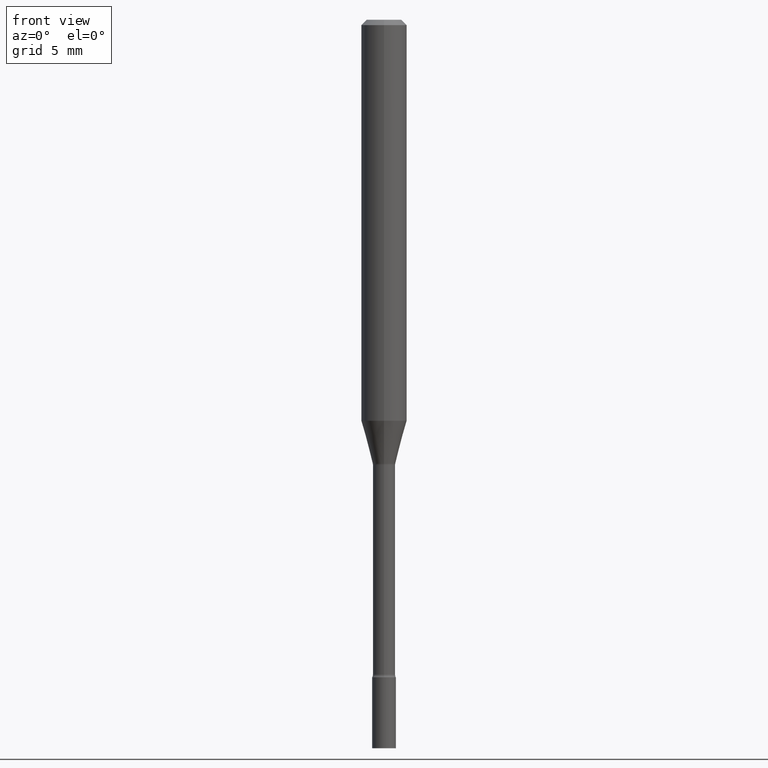
[diagram: clean part render]
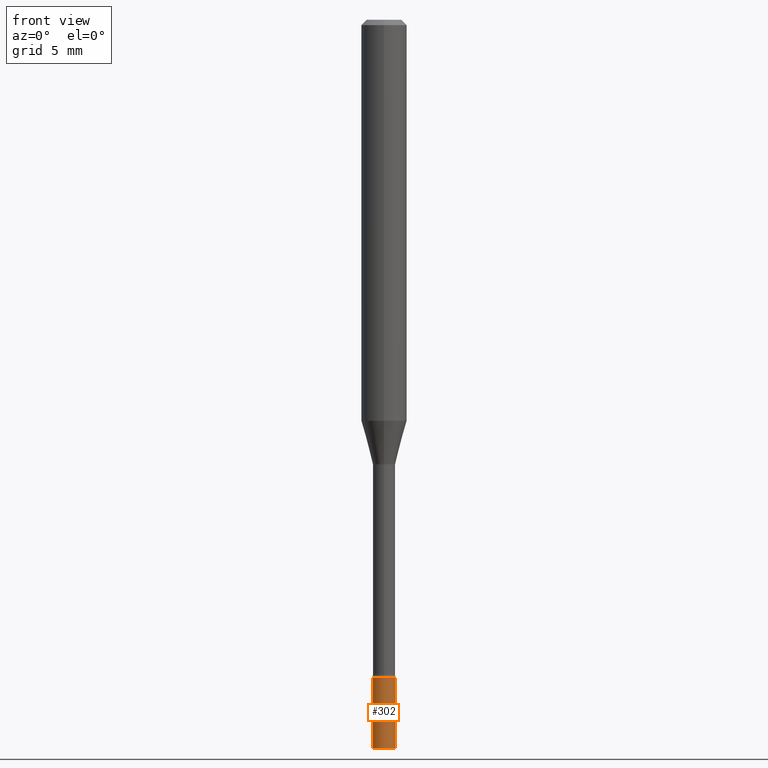
[diagram: same view with one face highlighted and labeled with its STEP entity id]
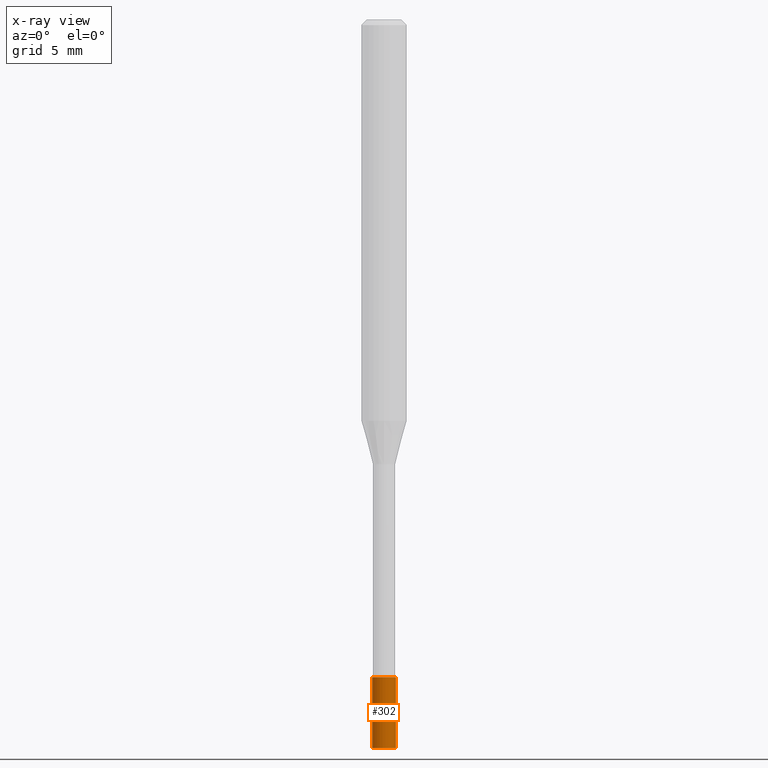
[diagram: x-ray of the same camera — body ghosted, the highlighted face saturated]
A machine part, front view. The second image highlights one B-rep face of the part: STEP entity #302.
The next image is the same camera in x-ray: the body ghosted, the highlighted face saturated — about 0% of this face is hidden behind the body in this view.
In plain terms, the highlighted cylindrical surface (edge-blend (fillet) strip) has radius 0.8255 mm, axis along (-0, 0, 1).
Its self-contained STEP definition (entity closure, byte-faithful):
#5 = ORIENTED_EDGE ( 'NONE', *, *, #223, .F. ) ;
#54 = CARTESIAN_POINT ( 'NONE',  ( 0.03250000000000000111, -2.269462870248036484E-16, 1.584757452133678993E-30 ) ) ;
#61 = CARTESIAN_POINT ( 'NONE',  ( 4.890937612370273194E-29, -6.982962677686291165E-15, -2.000000000000000000 ) ) ;
#65 = CIRCLE ( 'NONE', #475, 0.03250000000000000111 ) ;
#82 = DIRECTION ( 'NONE',  ( 1.000000000000000000, -6.982962677686258033E-15, 0.000000000000000000 ) ) ;
#95 = DIRECTION ( 'NONE',  ( -2.445468806185136597E-29, 3.491481338843145583E-15, 1.000000000000000000 ) ) ;
#106 = EDGE_CURVE ( 'NONE', #380, #132, #65, .T. ) ;
#124 = VERTEX_POINT ( 'NONE', #162 ) ;
#132 = VERTEX_POINT ( 'NONE', #501 ) ;
#162 = CARTESIAN_POINT ( 'NONE',  ( 0.03250000000000000111, -6.529070103636681305E-15, -1.804999999999999938 ) ) ;
#170 = ORIENTED_EDGE ( 'NONE', *, *, #253, .T. ) ;
#172 = DIRECTION ( 'NONE',  ( 1.000000000000000000, -6.982962677686265922E-15, 4.876176775795935232E-29 ) ) ;
#174 = CARTESIAN_POINT ( 'NONE',  ( 4.414071195164171423E-29, -6.302123816611877952E-15, -1.804999999999999938 ) ) ;
#223 = EDGE_CURVE ( 'NONE', #365, #124, #241, .T. ) ;
#228 = DIRECTION ( 'NONE',  ( -2.445468806185136877E-29, 3.491481338843145188E-15, 1.000000000000000000 ) ) ;
#231 = FACE_OUTER_BOUND ( 'NONE', #454, .T. ) ;
#241 = CIRCLE ( 'NONE', #409, 0.03250000000000000111 ) ;
#253 = EDGE_CURVE ( 'NONE', #132, #124, #345, .T. ) ;
#275 = LINE ( 'NONE', #477, #417 ) ;
#284 = DIRECTION ( 'NONE',  ( -2.445468806185136877E-29, 3.491481338843145188E-15, 1.000000000000000000 ) ) ;
#302 = ADVANCED_FACE ( 'NONE', ( #231 ), #420, .T. ) ;
#309 = VECTOR ( 'NONE', #228, 39.37007874015748143 ) ;
#342 = DIRECTION ( 'NONE',  ( -2.445468806185136597E-29, 3.491481338843145583E-15, 1.000000000000000000 ) ) ;
#345 = LINE ( 'NONE', #54, #309 ) ;
#365 = VERTEX_POINT ( 'NONE', #511 ) ;
#380 = VERTEX_POINT ( 'NONE', #435 ) ;
#393 = CARTESIAN_POINT ( 'NONE',  ( 0.000000000000000000, 0.000000000000000000, 0.000000000000000000 ) ) ;
#409 = AXIS2_PLACEMENT_3D ( 'NONE', #174, #95, #505 ) ;
#417 = VECTOR ( 'NONE', #284, 39.37007874015748143 ) ;
#420 = CYLINDRICAL_SURFACE ( 'NONE', #439, 0.03250000000000000111 ) ;
#435 = CARTESIAN_POINT ( 'NONE',  ( -0.03250000000000000111, -6.411616858027052188E-15, -2.000000000000000000 ) ) ;
#439 = AXIS2_PLACEMENT_3D ( 'NONE', #393, #342, #172 ) ;
#451 = ORIENTED_EDGE ( 'NONE', *, *, #106, .T. ) ;
#454 = EDGE_LOOP ( 'NONE', ( #459, #451, #170, #5 ) ) ;
#459 = ORIENTED_EDGE ( 'NONE', *, *, #494, .F. ) ;
#475 = AXIS2_PLACEMENT_3D ( 'NONE', #61, #512, #82 ) ;
#477 = CARTESIAN_POINT ( 'NONE',  ( -0.03250000000000000111, 2.309263891220325683E-16, -1.598653904332844407E-30 ) ) ;
#494 = EDGE_CURVE ( 'NONE', #380, #365, #275, .T. ) ;
#501 = CARTESIAN_POINT ( 'NONE',  ( 0.03250000000000000111, -7.209908964711093729E-15, -2.000000000000000000 ) ) ;
#505 = DIRECTION ( 'NONE',  ( 1.000000000000000000, -6.982962677686258033E-15, 0.000000000000000000 ) ) ;
#511 = CARTESIAN_POINT ( 'NONE',  ( -0.03250000000000000111, -6.411616858027052188E-15, -1.804999999999999938 ) ) ;
#512 = DIRECTION ( 'NONE',  ( -2.445468806185136597E-29, 3.491481338843145583E-15, 1.000000000000000000 ) ) ;